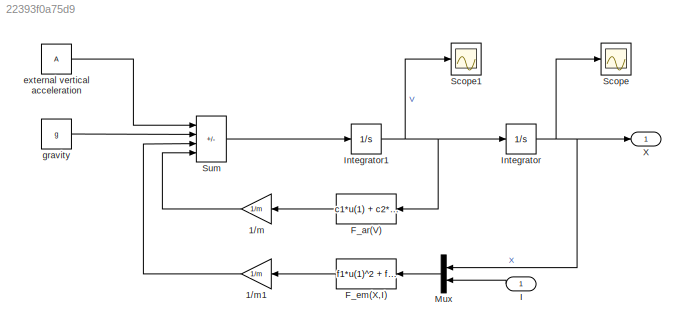
MODEL slx_22393f0a75d9
KIND model
CONFIG AbsTol = auto
CONFIG EnableMultiTasking = off
CONFIG FixedStep = STEP_SIZE
CONFIG MaxStep = auto
CONFIG MinStep = auto
CONFIG RelTol = 1e-3
CONFIG SampleTimeConstraint = Unconstrained
CONFIG Solver = ode4
CONFIG SolverName = ode4
CONFIG StartTime = 0.0
CONFIG StopTime = SIM_TIME
BLOCK [Gain] 1//m
  Gain = 1/m
BLOCK [Gain] 1//m1
  Gain = 1/m
BLOCK [Fcn] F_ar(V)
  Expr = c1*u(1) + c2*u(1)*abs(u(1))
BLOCK [Fcn] F_em(X,I)
  Expr = f1*u(1)^2 + f2*u(1)*u(2) - f3*u(1) + f4*u(2)^2 + f5*u(2) - f6
BLOCK [Inport] I
BLOCK [Integrator] Integrator
  InitialCondition = x0(1)
  Ports = [1, 1]
  Priority = 1
BLOCK [Integrator] Integrator1
  InitialCondition = x0(2)
  Ports = [1, 1]
  Priority = 2
BLOCK [Mux] Mux
  DisplayOption = bar
  Inputs = 2
  Ports = [2, 1]
BLOCK [Scope] Scope
  Floating = off
  NumInputPorts = 1
  Ports = [1]
  ScopeSpecificationString = Simulink.scopes.TimeScopeBlockCfg('CurrentConfiguration', extmgr.ConfigurationSet(extmgr.Configuration('Core','General UI',true),extmgr.Configuration('Core','Source UI',true),extmgr.Configuration('Sources','WiredSimulink',true),extmgr.Configuration('Visuals','Time Domain',true,'SerializedDisplays',{struct('MinYLimReal','0.002499999989','MaxYLimReal','0.002500000006','YLabelReal','','MinYLimMag','0...<+1446ch>
BLOCK [Scope] Scope1
  Floating = off
  NumInputPorts = 1
  Ports = [1]
  ScopeSpecificationString = Simulink.scopes.TimeScopeBlockCfg('CurrentConfiguration', extmgr.ConfigurationSet(extmgr.Configuration('Core','General UI',true),extmgr.Configuration('Core','Source UI',true),extmgr.Configuration('Sources','WiredSimulink',true,'DataLoggingVariableName','ScopeData1'),extmgr.Configuration('Visuals','Time Domain',true,'SerializedDisplays',{struct('MinYLimReal','-0.16329','MaxYLimReal','0.16286','YLab...<+1360ch>
BLOCK [Sum] Sum
  IconShape = rectangular
  Inputs = +-+-
  Ports = [4, 1]
BLOCK [Outport] X
  VectorParamsAs1DForOutWhenUnconnected = off
BLOCK [Constant] external vertical acceleration
  Value = A
BLOCK [Constant] gravity
  Value = g
LINE 1//m1:1 -> Sum:3
LINE 1//m:1 -> Sum:4
LINE F_ar(V):1 -> 1//m:1
LINE F_em(X,I):1 -> 1//m1:1
LINE I:1 -> Mux:2
NET Integrator1:1 -> F_ar(V):1, Integrator:1, Scope1:1
NET Integrator:1 -> Mux:1, Scope:1, X:1
LINE Mux:1 -> F_em(X,I):1
LINE Sum:1 -> Integrator1:1
LINE external vertical acceleration:1 -> Sum:1
LINE gravity:1 -> Sum:2
note: NET lines group one-source signal fan-out (src -> all destinations, sorted); 1:1 wires keep LINE
